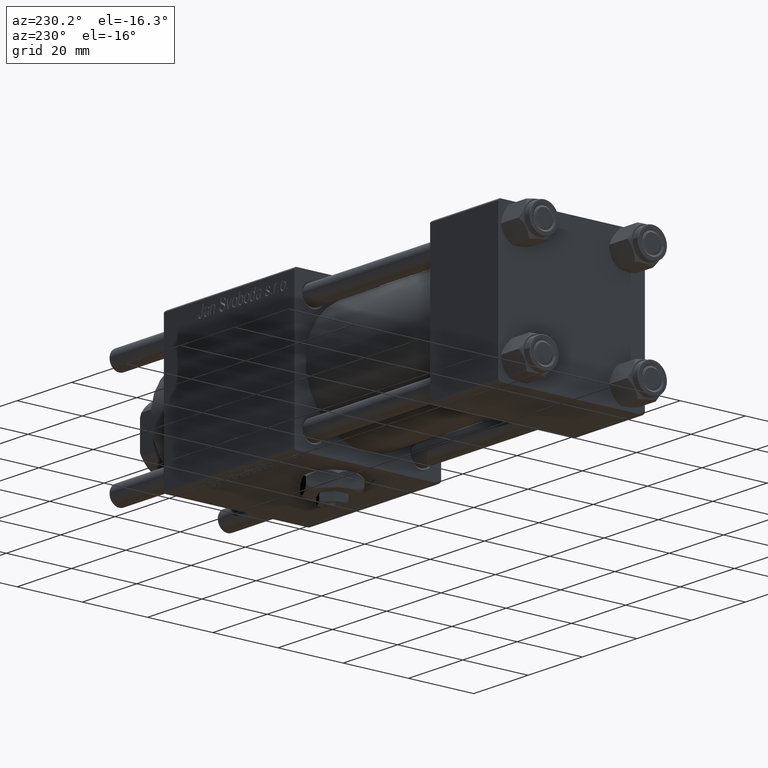
[diagram: clean part render]
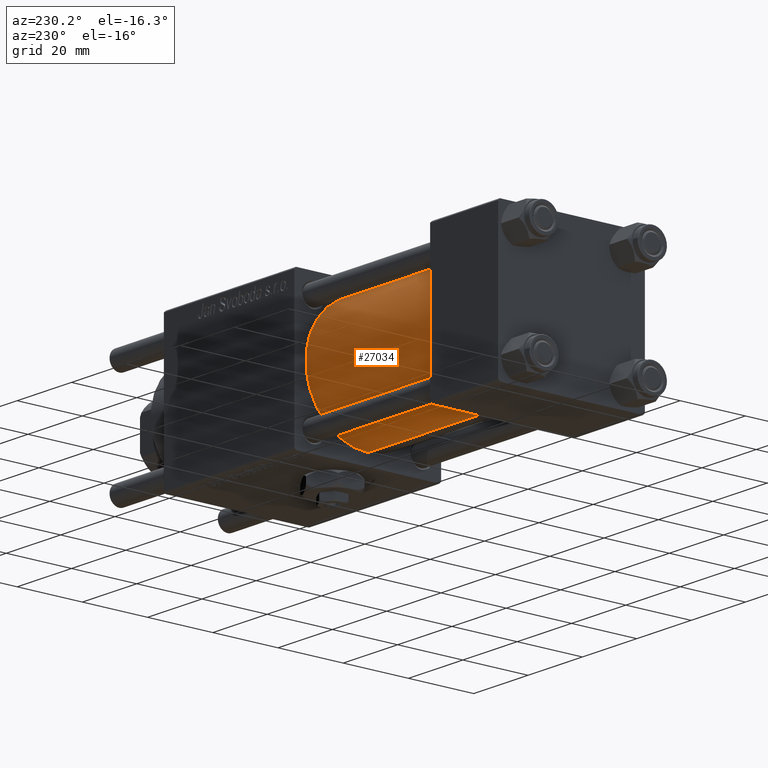
[diagram: same view with one face highlighted and labeled with its STEP entity id]
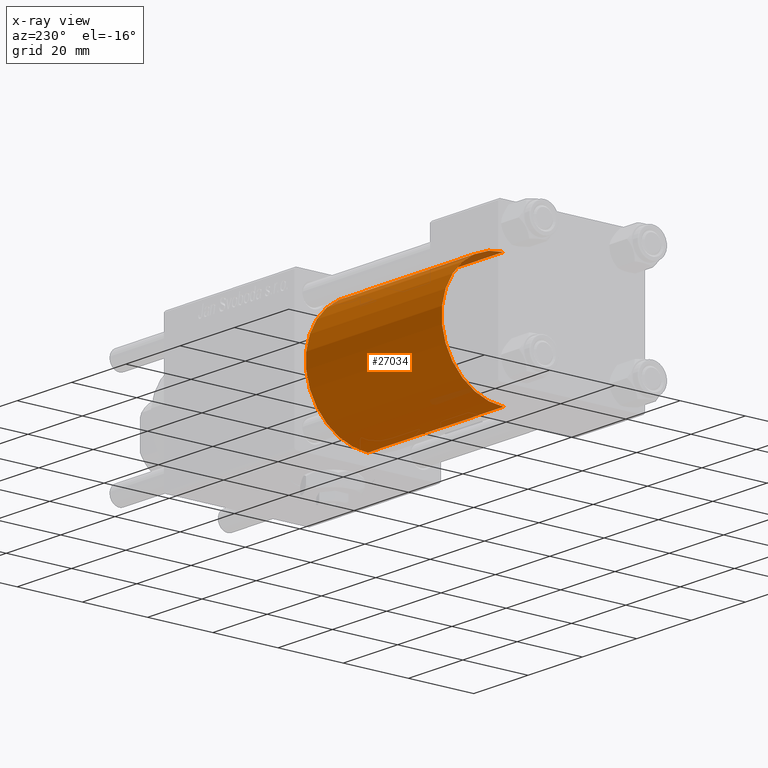
[diagram: x-ray of the same camera — body ghosted, the highlighted face saturated]
A machine part, auxiliary view. The second image highlights one B-rep face of the part: STEP entity #27034.
The next image is the same camera in x-ray: the body ghosted, the highlighted face saturated — about 2% of this face is hidden behind the body in this view.
In plain terms, the highlighted cylindrical surface (partial cylindrical patch) has radius 19 mm, axis along (-1, -0, -0).
Its self-contained STEP definition (entity closure, byte-faithful):
#101 = VERTEX_POINT ( 'NONE', #26431 ) ;
#320 = AXIS2_PLACEMENT_3D ( 'NONE', #55644, #41716, #32543 ) ;
#3364 = EDGE_CURVE ( 'NONE', #101, #42760, #32294, .T. ) ;
#5102 = DIRECTION ( 'NONE',  ( -1.000000000000000000, -0.000000000000000000, -0.000000000000000000 ) ) ;
#9950 = CYLINDRICAL_SURFACE ( 'NONE', #56136, 19.00000000000000000 ) ;
#10527 = DIRECTION ( 'NONE',  ( 0.000000000000000000, 0.000000000000000000, 1.000000000000000000 ) ) ;
#10872 = CARTESIAN_POINT ( 'NONE',  ( 25.00000000000000000, -2.602085213965210642E-15, 19.00000000000000000 ) ) ;
#11435 = VERTEX_POINT ( 'NONE', #26628 ) ;
#13913 = DIRECTION ( 'NONE',  ( 0.000000000000000000, 0.000000000000000000, 1.000000000000000000 ) ) ;
#16426 = CIRCLE ( 'NONE', #18327, 19.00000000000000000 ) ;
#17879 = CARTESIAN_POINT ( 'NONE',  ( 75.00000000000001421, -2.752562955852396712E-16, -19.00000000000000000 ) ) ;
#18327 = AXIS2_PLACEMENT_3D ( 'NONE', #27811, #45597, #13913 ) ;
#22253 = VECTOR ( 'NONE', #34565, 1000.000000000000000 ) ;
#22292 = ORIENTED_EDGE ( 'NONE', *, *, #38241, .T. ) ;
#23121 = ORIENTED_EDGE ( 'NONE', *, *, #3364, .F. ) ;
#25807 = EDGE_CURVE ( 'NONE', #53334, #101, #38124, .T. ) ;
#26141 = EDGE_LOOP ( 'NONE', ( #49993, #22292, #35329, #23121 ) ) ;
#26431 = CARTESIAN_POINT ( 'NONE',  ( 75.00000000000001421, -2.602085213965210642E-15, 19.00000000000000000 ) ) ;
#26628 = CARTESIAN_POINT ( 'NONE',  ( 25.00000000000000000, -2.752562955852396712E-16, -19.00000000000000000 ) ) ;
#27034 = ADVANCED_FACE ( 'NONE', ( #42783 ), #9950, .T. ) ;
#27811 = CARTESIAN_POINT ( 'NONE',  ( 25.00000000000000000, -2.602085213965210642E-15, 0.000000000000000000 ) ) ;
#32294 = LINE ( 'NONE', #49504, #34129 ) ;
#32543 = DIRECTION ( 'NONE',  ( 0.000000000000000000, 0.000000000000000000, -1.000000000000000000 ) ) ;
#32732 = EDGE_CURVE ( 'NONE', #11435, #42760, #16426, .T. ) ;
#34129 = VECTOR ( 'NONE', #5102, 1000.000000000000000 ) ;
#34565 = DIRECTION ( 'NONE',  ( -1.000000000000000000, -0.000000000000000000, -0.000000000000000000 ) ) ;
#35329 = ORIENTED_EDGE ( 'NONE', *, *, #32732, .T. ) ;
#38124 = CIRCLE ( 'NONE', #320, 19.00000000000000000 ) ;
#38241 = EDGE_CURVE ( 'NONE', #53334, #11435, #56494, .T. ) ;
#41716 = DIRECTION ( 'NONE',  ( 1.000000000000000000, 0.000000000000000000, 0.000000000000000000 ) ) ;
#42760 = VERTEX_POINT ( 'NONE', #10872 ) ;
#42783 = FACE_OUTER_BOUND ( 'NONE', #26141, .T. ) ;
#42870 = CARTESIAN_POINT ( 'NONE',  ( 75.00000000000001421, -2.752562955852396712E-16, -19.00000000000000000 ) ) ;
#45597 = DIRECTION ( 'NONE',  ( 1.000000000000000000, -0.000000000000000000, 0.000000000000000000 ) ) ;
#49504 = CARTESIAN_POINT ( 'NONE',  ( 75.00000000000001421, -2.602085213965210642E-15, 19.00000000000000000 ) ) ;
#49993 = ORIENTED_EDGE ( 'NONE', *, *, #25807, .F. ) ;
#51095 = DIRECTION ( 'NONE',  ( -1.000000000000000000, -0.000000000000000000, -0.000000000000000000 ) ) ;
#53334 = VERTEX_POINT ( 'NONE', #17879 ) ;
#55251 = CARTESIAN_POINT ( 'NONE',  ( 75.00000000000001421, -2.602085213965210642E-15, 0.000000000000000000 ) ) ;
#55644 = CARTESIAN_POINT ( 'NONE',  ( 75.00000000000001421, -2.602085213965210642E-15, 0.000000000000000000 ) ) ;
#56136 = AXIS2_PLACEMENT_3D ( 'NONE', #55251, #51095, #10527 ) ;
#56494 = LINE ( 'NONE', #42870, #22253 ) ;